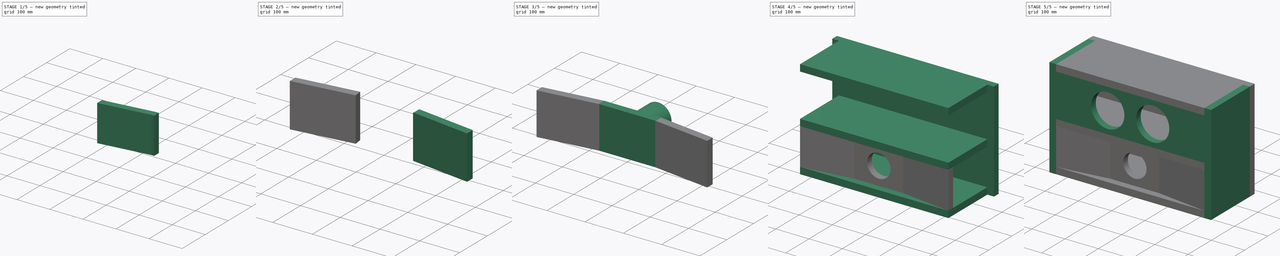
[diagram: build sequence overview — one tinted view per stage of 5, left to right]
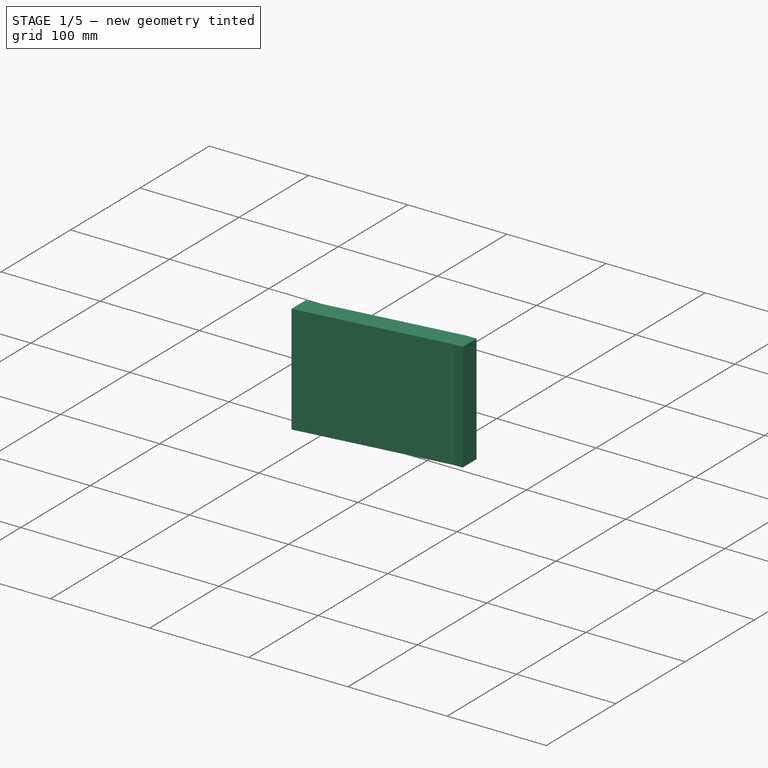
[diagram: stage 1 of 5 — iso view after this stage's code; geometry added in this stage tinted green]
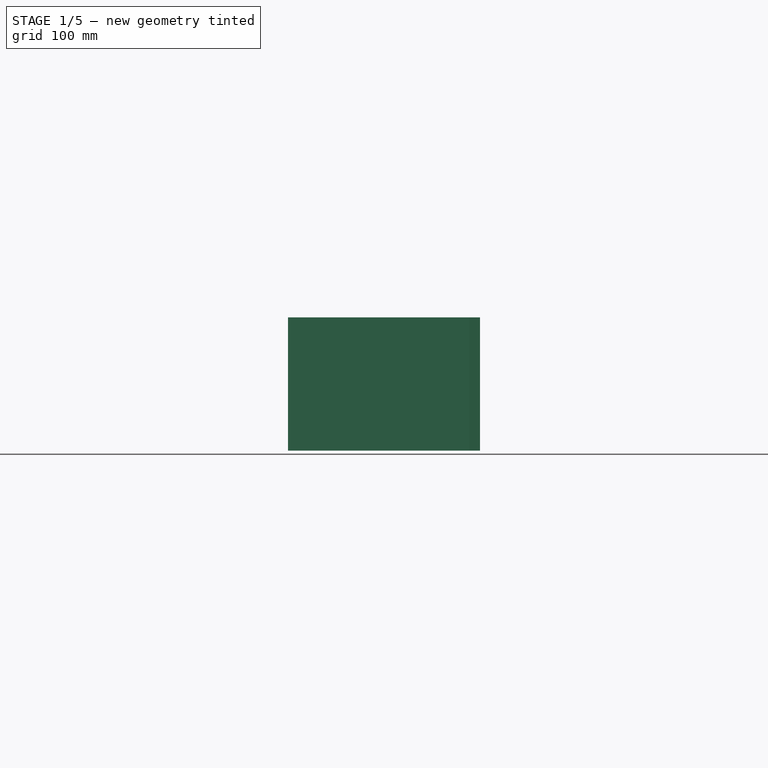
[diagram: stage 1 of 5 — front view after this stage's code; geometry added in this stage tinted green]
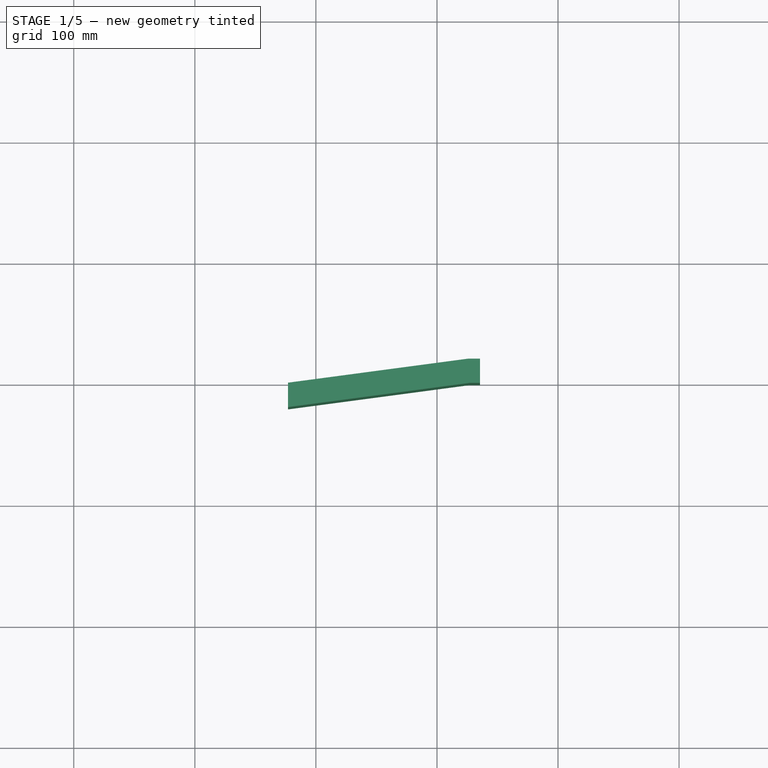
[diagram: stage 1 of 5 — top view after this stage's code; geometry added in this stage tinted green]
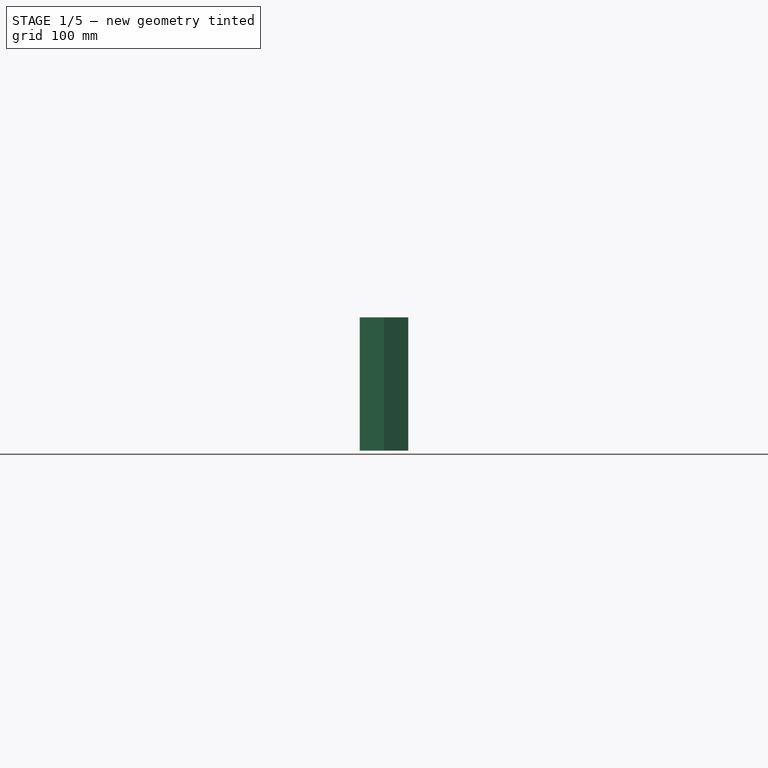
[diagram: stage 1 of 5 — right view after this stage's code; geometry added in this stage tinted green]
FCSTD DOCUMENT  (FreeCAD 0.17R13541 (Git))
Label: designEnceinteFreeCAD.fcstd.backup
License: All rights reserved
LicenseURL: http://en.wikipedia.org/wiki/All_rights_reserved
objects: Part::Box×13, Part::Cut×5, Sketcher::SketchObject×2, PartDesign::Pad×1, PartDesign::Pocket×1, PartDesign::Body×1, Part::Cylinder×1, Part::Mirroring×1
note: 27 computed .brp shape members not serialized (recipe doc carries the construction recipe); baked Part::Feature solids carry a one-line shape summary decoded from their .brp

FEATURE [Part::Box] Box010  label="Face avant gauche001"
  AttacherType = Attacher::AttachEngine3D
  Height = 110
  Length = 153
  Placement = pos=(-223,-20,-194.5) rot=(0,0,1;0.132645rad)
  Width = 20
FEATURE [Part::Box] Box011  label="Coupe003"
  AttacherType = Attacher::AttachEngine3D
  Height = 110
  Length = 20
  Placement = pos=(-243,-20,-194.5) rot=(0,0,1;0rad)
  Width = 21
FEATURE [Part::Box] Box012  label="Coupe004"
  AttacherType = Attacher::AttachEngine3D
  Height = 110
  Length = 10
  Placement = pos=(-74.5,0,-194.5) rot=(0,0,1;0rad)
  Width = 20
FEATURE [Part::Cut] Cut004
  Base = -> Box010
  Tool = -> Box011
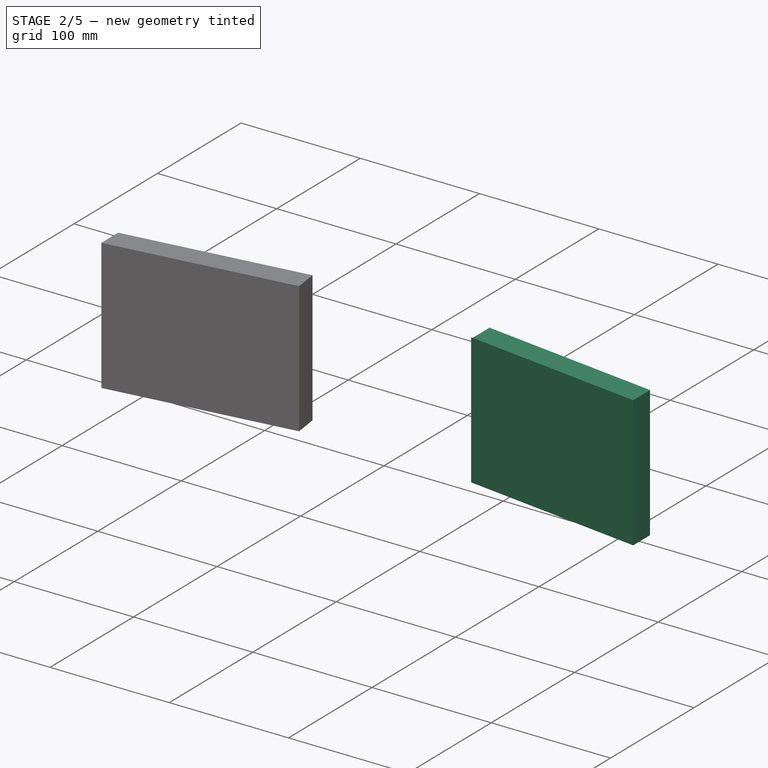
[diagram: stage 2 of 5 — iso view after this stage's code; geometry added in this stage tinted green]
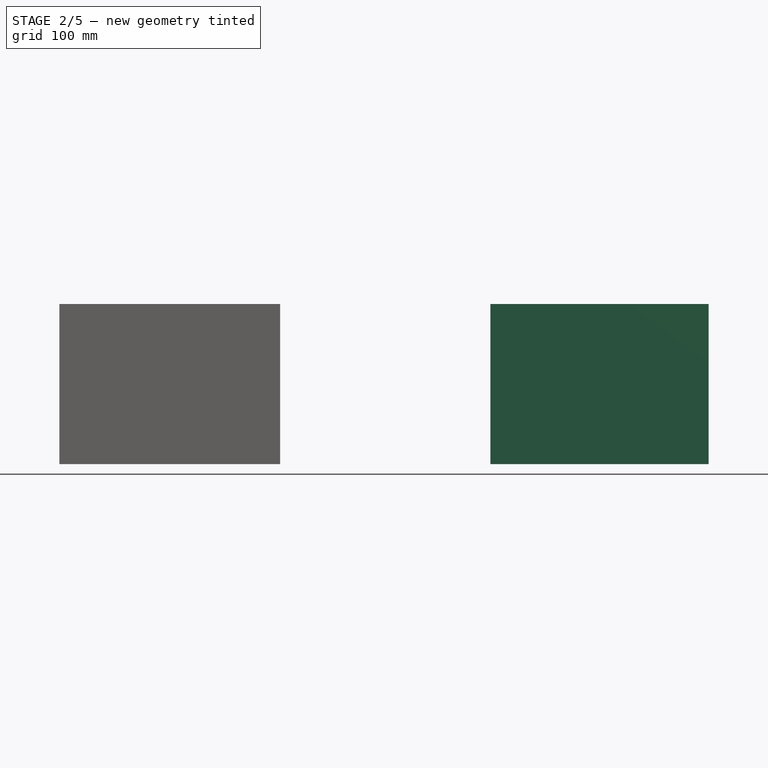
[diagram: stage 2 of 5 — front view after this stage's code; geometry added in this stage tinted green]
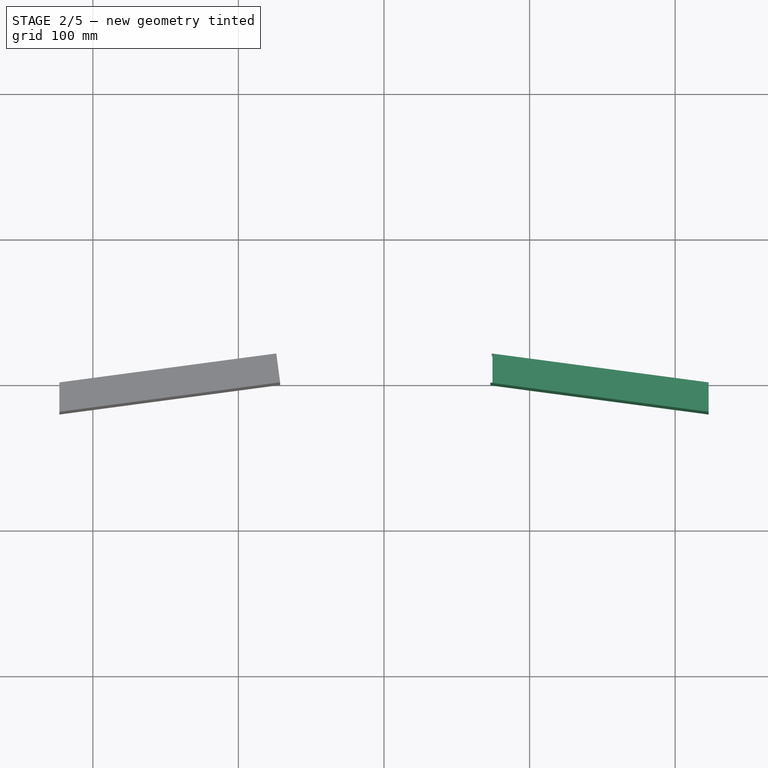
[diagram: stage 2 of 5 — top view after this stage's code; geometry added in this stage tinted green]
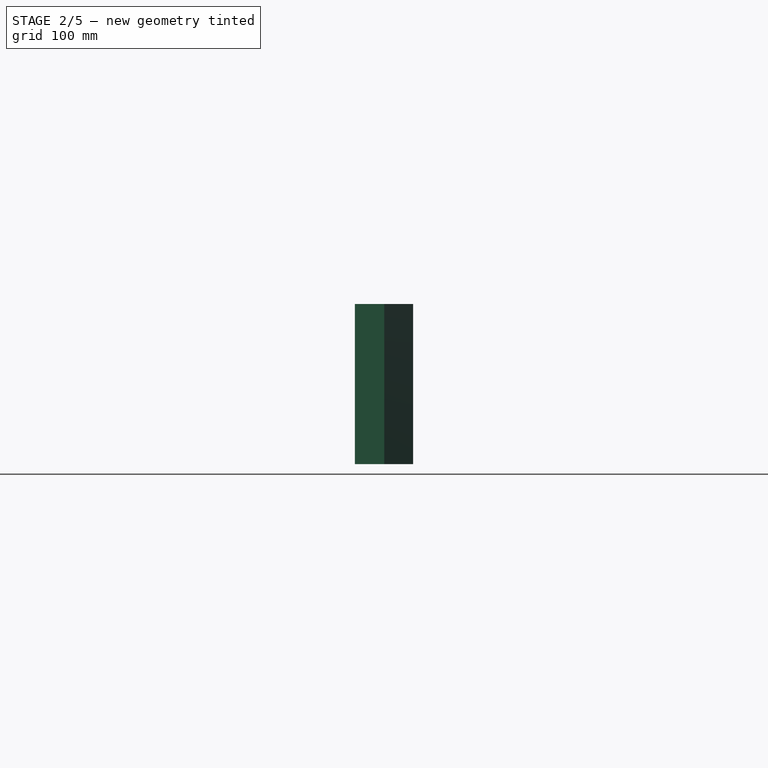
[diagram: stage 2 of 5 — right view after this stage's code; geometry added in this stage tinted green]
FEATURE [Part::Box] Box007  label="Face avant gauche"
  AttacherType = Attacher::AttachEngine3D
  Height = 110
  Length = 153
  Placement = pos=(-223,-20,-194.5) rot=(0,0,1;0.132645rad)
  Width = 20
FEATURE [Part::Box] Box009  label="Coupe2"
  AttacherType = Attacher::AttachEngine3D
  Height = 110
  Length = 20
  Placement = pos=(-243,-20,-194.5) rot=(0,0,1;0rad)
  Width = 21
FEATURE [Part::Cut] Cut001
  Base = -> Box007
  Tool = -> Box009
FEATURE [Part::Cut] Cut003  label="Coupe avant droit"
  Base = -> Cut004
  Tool = -> Box012
FEATURE [Part::Mirroring] Part__Mirroring  label="Coupe avant droit001"
  Base = (0,0,0)
  Normal = (1,0,0)
  Source = -> Cut003
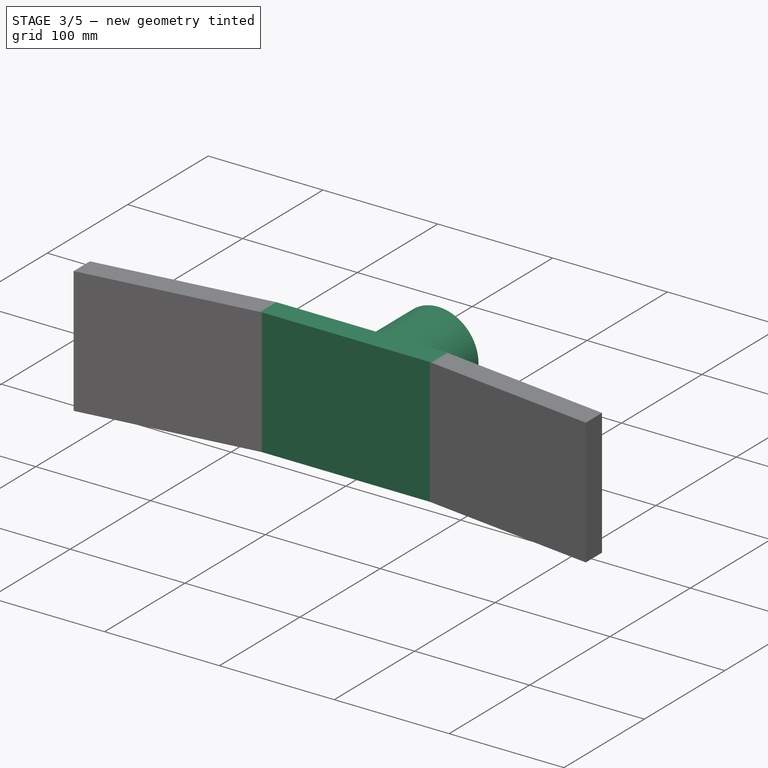
[diagram: stage 3 of 5 — iso view after this stage's code; geometry added in this stage tinted green]
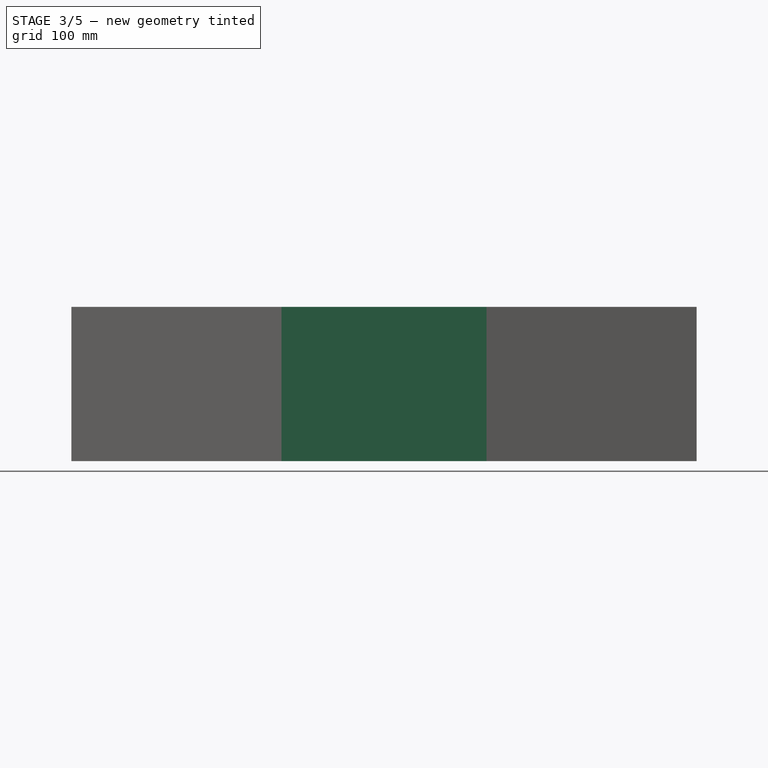
[diagram: stage 3 of 5 — front view after this stage's code; geometry added in this stage tinted green]
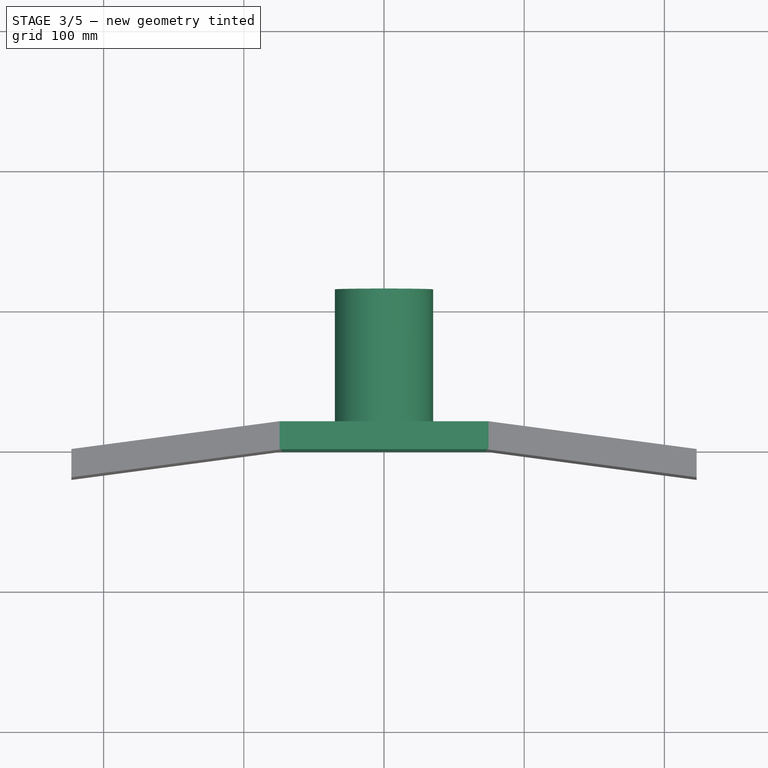
[diagram: stage 3 of 5 — top view after this stage's code; geometry added in this stage tinted green]
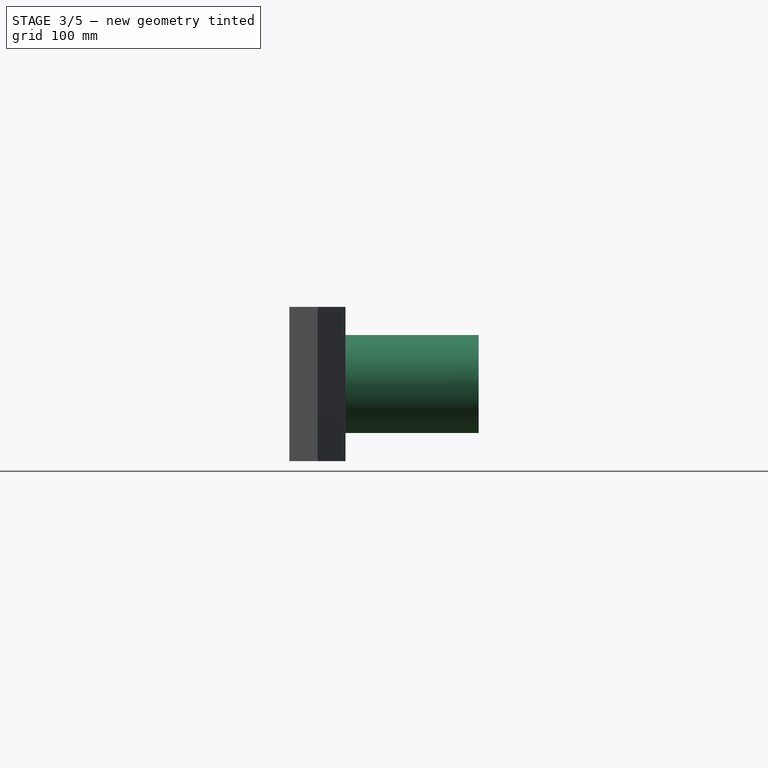
[diagram: stage 3 of 5 — right view after this stage's code; geometry added in this stage tinted green]
FEATURE [Part::Box] Box005  label="Face bass reflex"
  AttacherType = Attacher::AttachEngine3D
  Height = 110
  Length = 149
  Placement = pos=(-74.5,0,-194.5) rot=(0,0,1;0rad)
  Width = 20
FEATURE [Part::Cylinder] Cylinder  label="Bass Reflex"
  Angle = 360
  AttacherType = Attacher::AttachEngine3D
  Height = 115
  Placement = pos=(0,115,-139.5) rot=(1,0,0;1.5708rad)
  Radius = 35
FEATURE [Part::Box] Box008  label="Coupe1"
  AttacherType = Attacher::AttachEngine3D
  Height = 110
  Length = 10
  Placement = pos=(-74.5,0,-194.5) rot=(0,0,1;0rad)
  Width = 20
FEATURE [Part::Cut] Cut002  label="Coupe avant gauche"
  Base = -> Cut001
  Tool = -> Box008
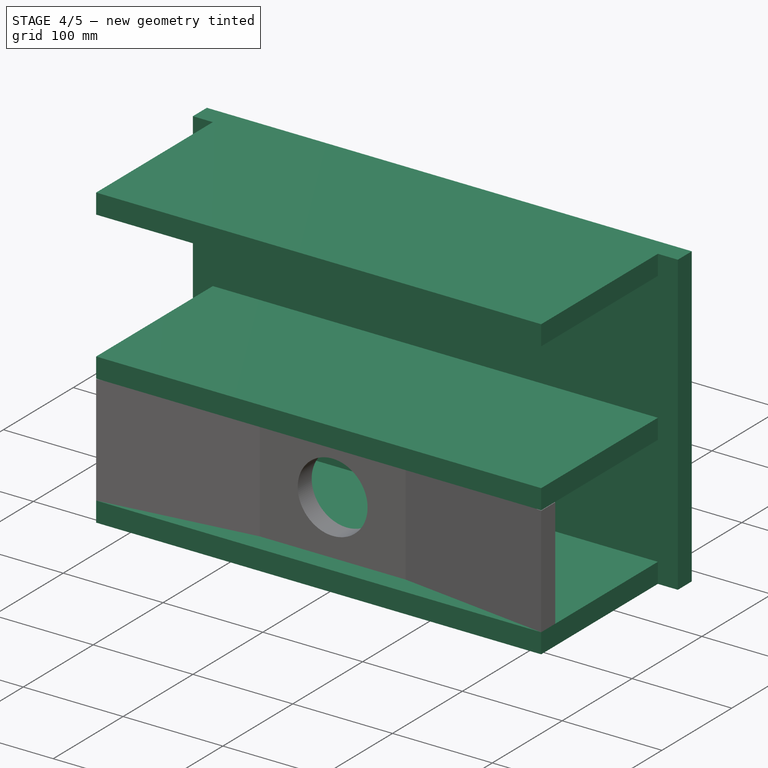
[diagram: stage 4 of 5 — iso view after this stage's code; geometry added in this stage tinted green]
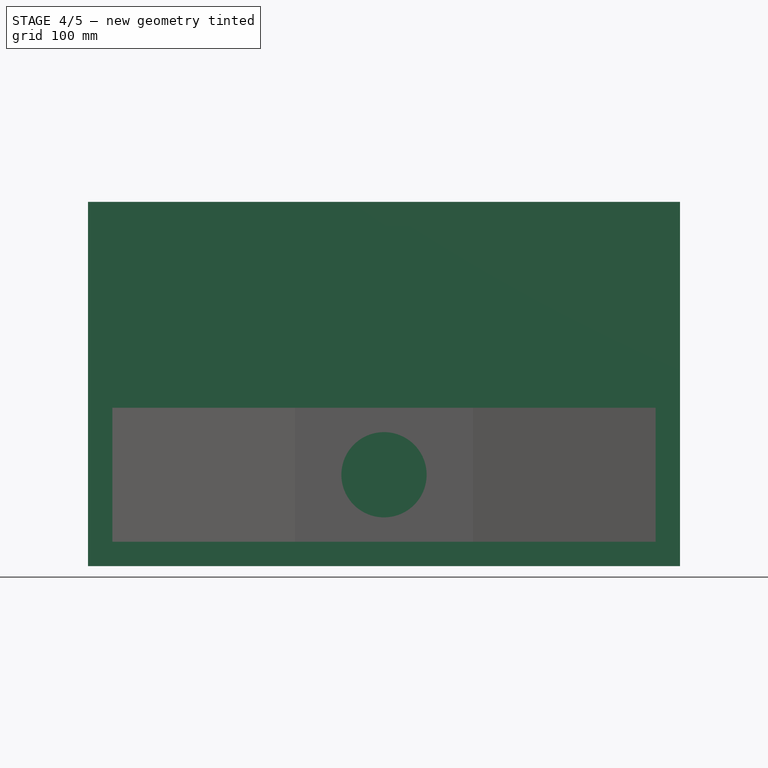
[diagram: stage 4 of 5 — front view after this stage's code; geometry added in this stage tinted green]
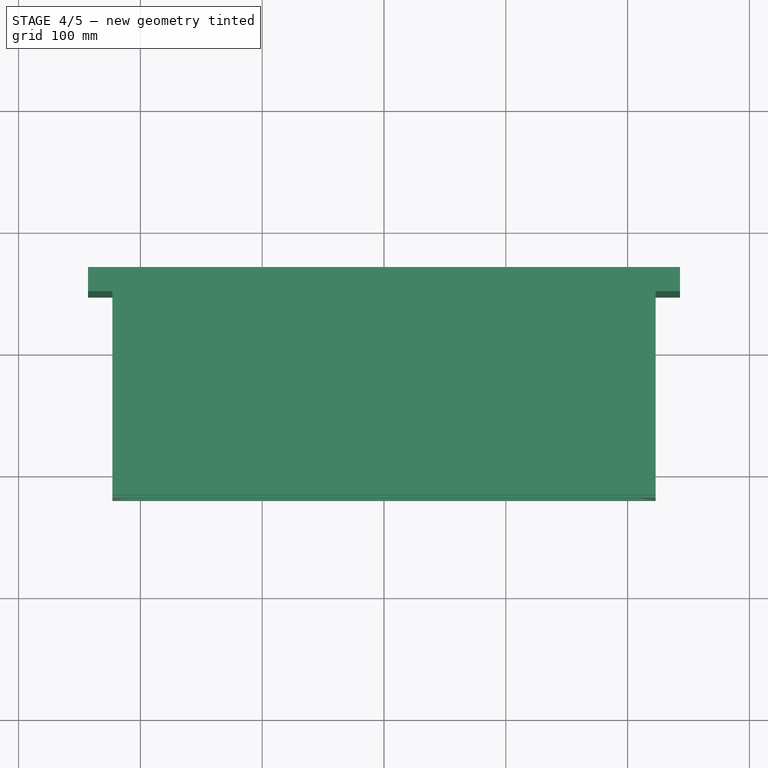
[diagram: stage 4 of 5 — top view after this stage's code; geometry added in this stage tinted green]
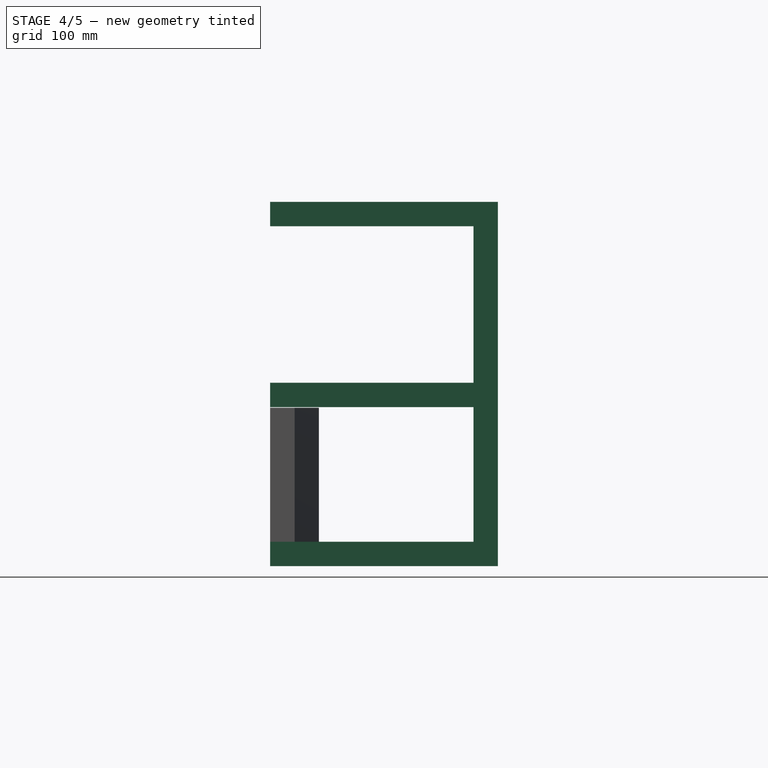
[diagram: stage 4 of 5 — right view after this stage's code; geometry added in this stage tinted green]
FEATURE [Part::Box] Box002  label="Face haute"
  AttacherType = Attacher::AttachEngine3D
  Height = 20
  Length = 446
  Placement = pos=(-223,-20,64.5) rot=(0,0,1;0rad)
  Width = 167
FEATURE [Part::Box] Box003  label="Face fond"
  AttacherType = Attacher::AttachEngine3D
  Height = 299
  Length = 486
  Placement = pos=(-243,147,-214.5) rot=(0,0,1;0rad)
  Width = 20
FEATURE [Part::Box] Box004  label="Face basse"
  AttacherType = Attacher::AttachEngine3D
  Height = 20
  Length = 446
  Placement = pos=(-223,-20,-214.5) rot=(0,0,1;0rad)
  Width = 167
FEATURE [Part::Box] Box006  label="Face intermédiaire"
  AttacherType = Attacher::AttachEngine3D
  Height = 20
  Length = 446
  Placement = pos=(-223,-20,-84) rot=(0,0,1;0rad)
  Width = 167
FEATURE [Part::Cut] Cut  label="Avant Bass Reflex"
  Base = -> Box005
  Tool = -> Cylinder
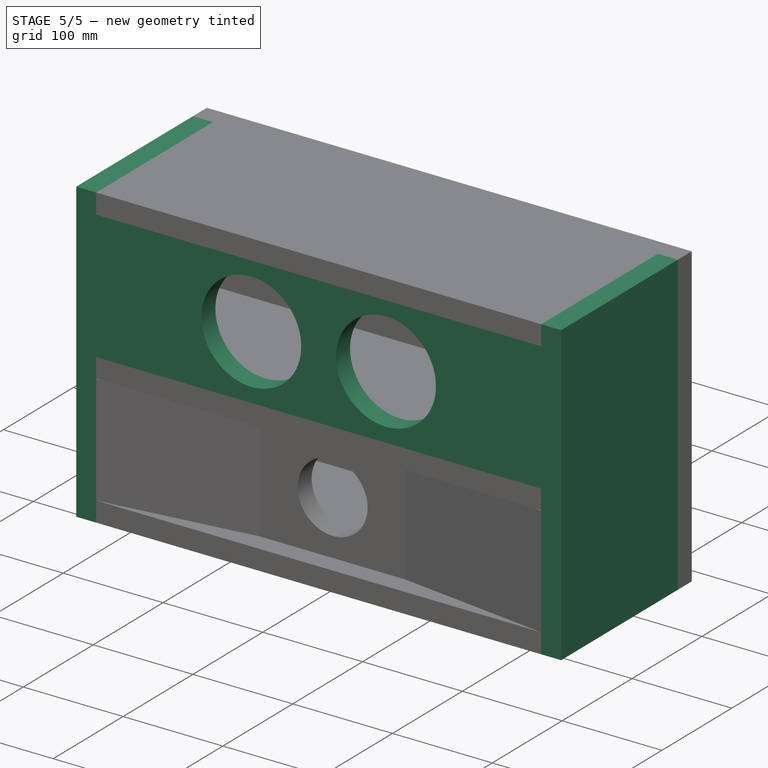
[diagram: stage 5 of 5 — iso view after this stage's code; geometry added in this stage tinted green]
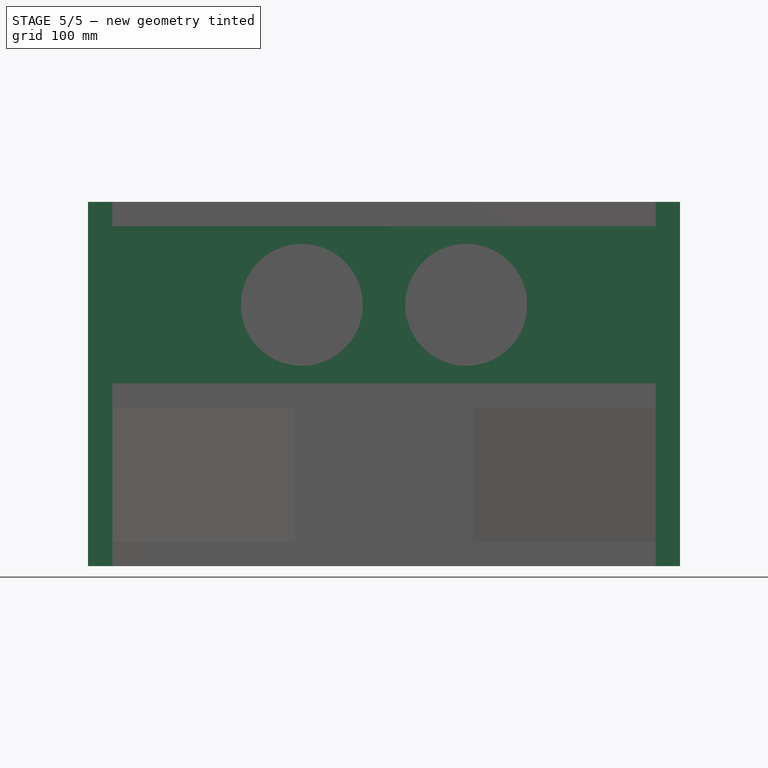
[diagram: stage 5 of 5 — front view after this stage's code; geometry added in this stage tinted green]
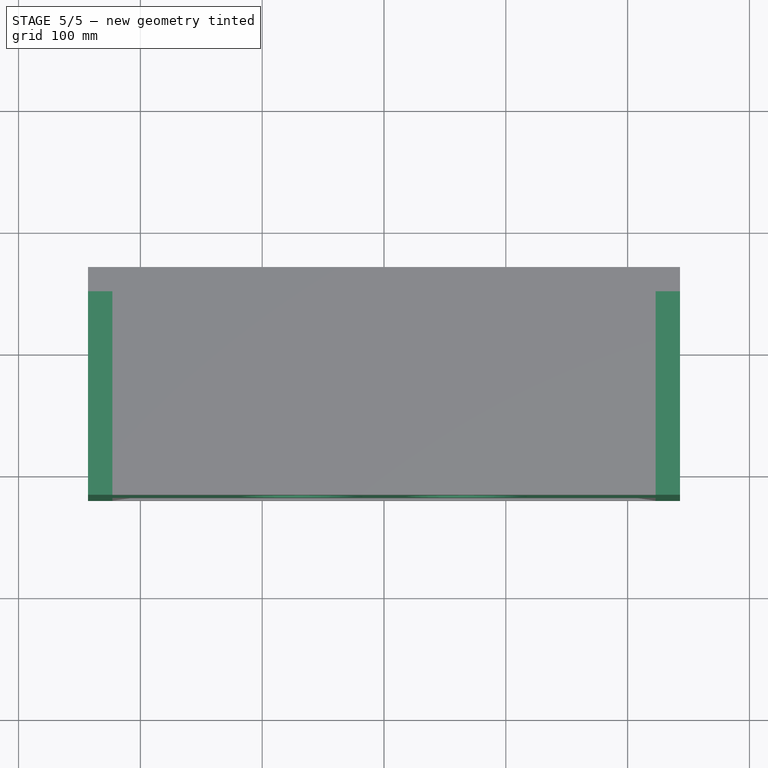
[diagram: stage 5 of 5 — top view after this stage's code; geometry added in this stage tinted green]
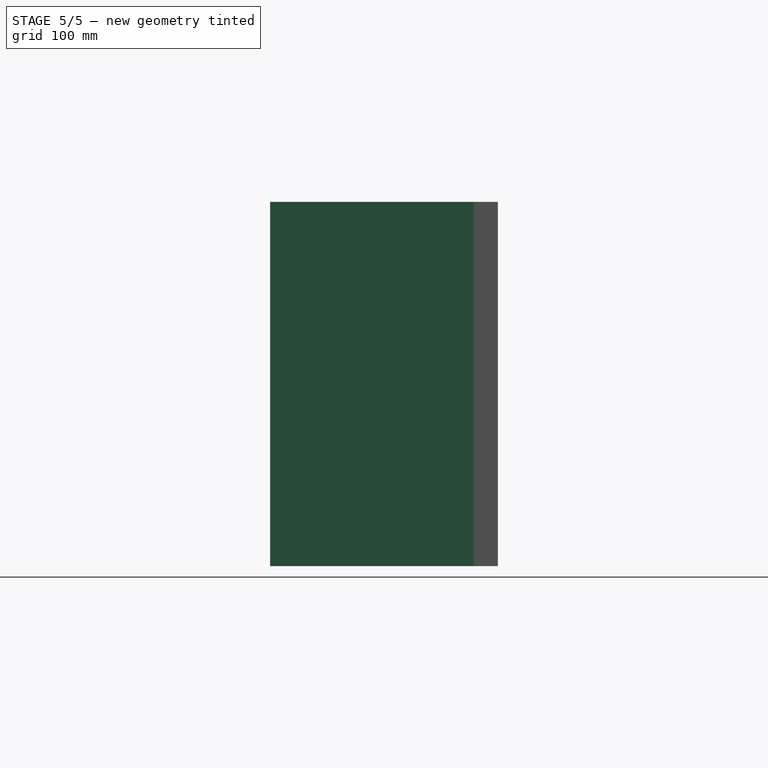
[diagram: stage 5 of 5 — right view after this stage's code; geometry added in this stage tinted green]
FEATURE [Sketcher::SketchObject] Sketch
  MapMode = 5
  Placement = pos=(0,0,0) rot=(1,0,0;1.5708rad)
  Support = -> [XZ_Plane]
  sketch-geometry (6):
    g0: LineSegment StartX=-223 StartY=64.5 StartZ=0 EndX=223 EndY=64.5 EndZ=0
    g1: LineSegment StartX=223 StartY=64.5 StartZ=0 EndX=223 EndY=-64.5 EndZ=0
    g2: LineSegment StartX=223 StartY=-64.5 StartZ=0 EndX=-223 EndY=-64.5 EndZ=0
    g3: LineSegment StartX=-223 StartY=-64.5 StartZ=0 EndX=-223 EndY=64.5 EndZ=0
    g4: LineSegment [constr] StartX=-223 StartY=-64.5 StartZ=0 EndX=223 EndY=64.5 EndZ=0
    g5: LineSegment [constr] StartX=-223 StartY=64.5 StartZ=0 EndX=223 EndY=-64.5 EndZ=0
  constraints (16):
    c: Coincident(g0,g1)
    c: Coincident(g1,g2)
    c: Coincident(g2,g3)
    c: Coincident(g3,g0)
    c: Horizontal(g0)
    c: Horizontal(g2)
    c: Vertical(g1)
    c: Vertical(g3)
    c: DistanceX(g0,g0) = 446
    c: DistanceY(g1,g1) = 129
    c: Coincident(g4,g2)
    c: Coincident(g4,g0)
    c: Coincident(g5,g0)
    c: Coincident(g5,g1)
    c: PointOnObject(g-1,g5)
    c: PointOnObject(g-1,g4)
FEATURE [PartDesign::Pad] Pad
  Length = 20
  Length2 = 100
  Placement = pos=(0,0,0) rot=(1,0,0;1.5708rad)
  Profile = -> Sketch
  Type = 0
FEATURE [Sketcher::SketchObject] Sketch001
  MapMode = 5
  Placement = pos=(0,-20,-2e-12) rot=(1,0,0;1.5708rad)
  Support = -> [Pad]
  sketch-geometry (2):
    g0: Circle CenterX=-67.5 CenterY=0 CenterZ=0 NormalX=0 NormalY=0 NormalZ=1 AngleXU=0 Radius=50
    g1: Circle CenterX=67.5 CenterY=0 CenterZ=0 NormalX=0 NormalY=0 NormalZ=1 AngleXU=0 Radius=50
  constraints (6):
    c: PointOnObject(g0,g-1)
    c: Radius(g0) = 50
    c: DistanceX(g0,g-1) = 67.5
    c: Radius(g1) = 50
    c: PointOnObject(g1,g-1)
    c: DistanceX(g-1,g1) = 67.5
FEATURE [PartDesign::Pocket] Pocket
  BaseFeature = -> Pad
  Length = 5
  Length2 = 100
  Placement = pos=(0,0,0) rot=(1,0,0;1.5708rad)
  Profile = -> Sketch001
  Type = 1
FEATURE [PartDesign::Body] Body  label="Face avant sup"
  Group = -> [Sketch,Pad,Sketch001,Pocket]
  Origin = -> Origin
  Tip = -> Pocket
FEATURE [Part::Box] Box  label="Face gauche"
  AttacherType = Attacher::AttachEngine3D
  Height = 299
  Length = 20
  Placement = pos=(-243,-20,-214.5) rot=(0,0,1;0rad)
  Width = 167
FEATURE [Part::Box] Box001  label="Face droite"
  AttacherType = Attacher::AttachEngine3D
  Height = 299
  Length = 20
  Placement = pos=(223,-20,-214.5) rot=(0,0,1;0rad)
  Width = 167
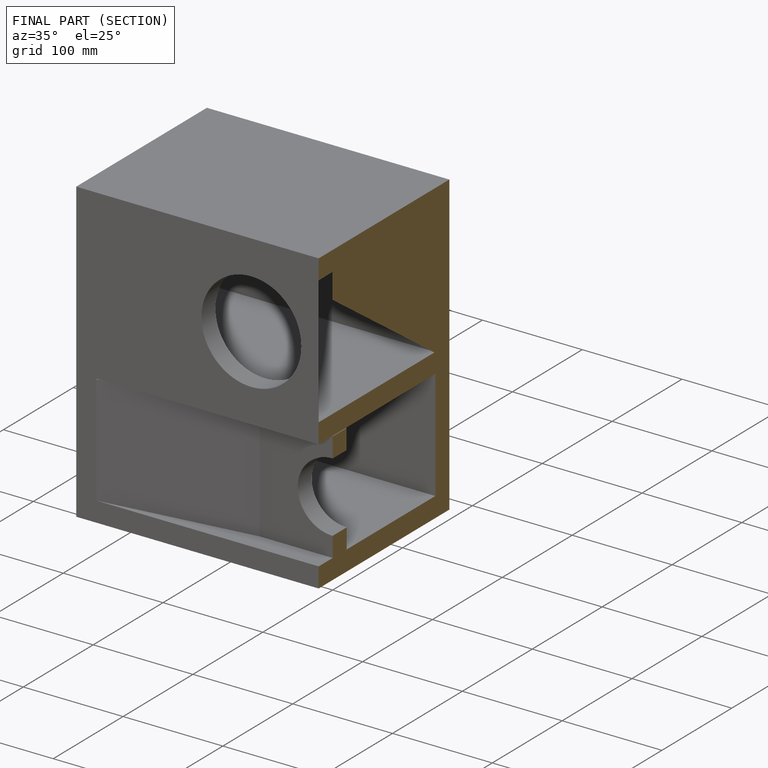
[diagram: finished part — half-section view (interior)]
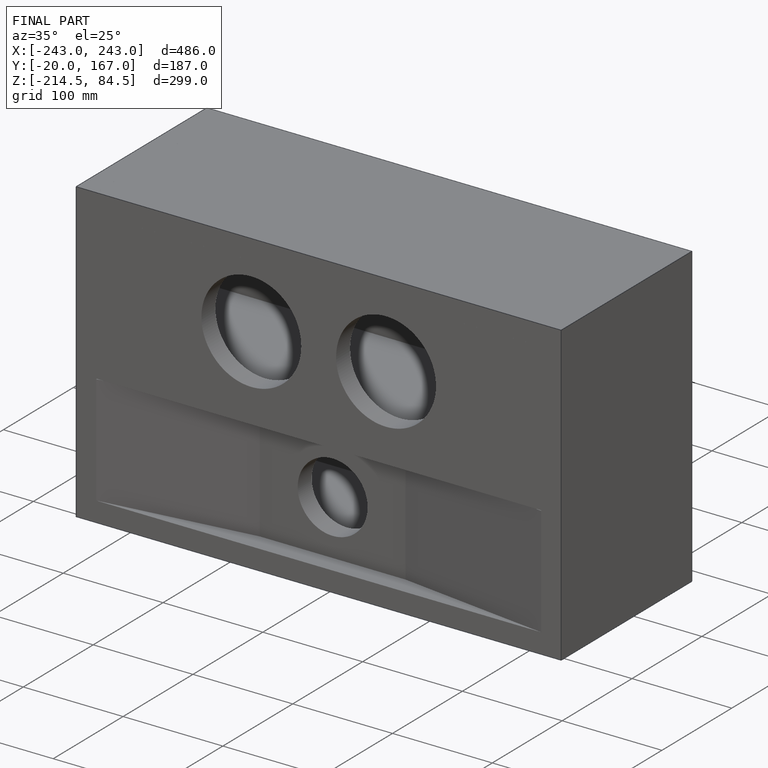
[diagram: finished part — iso view with bounding-box wireframe]
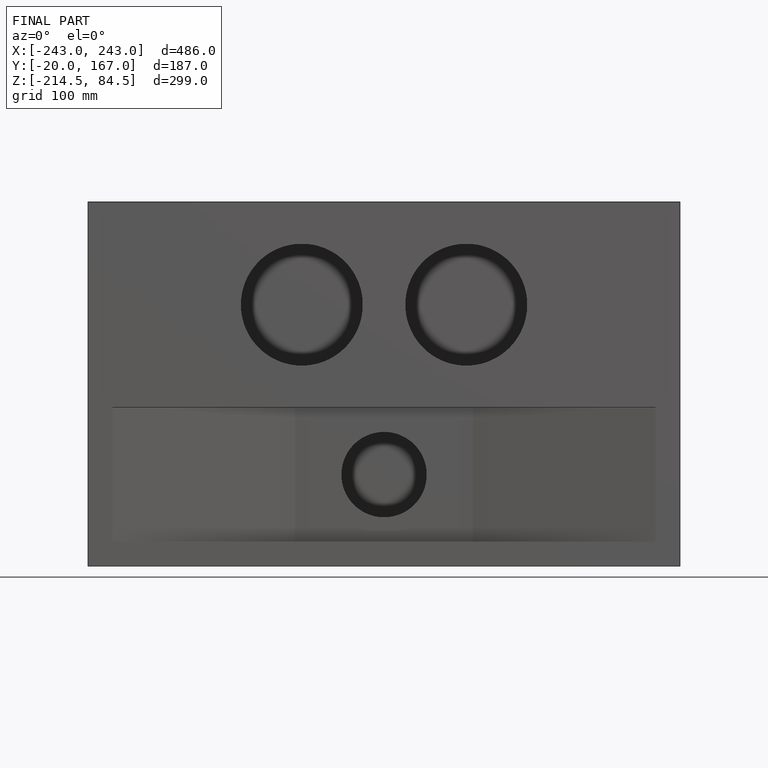
[diagram: finished part — front view with bounding-box wireframe]
